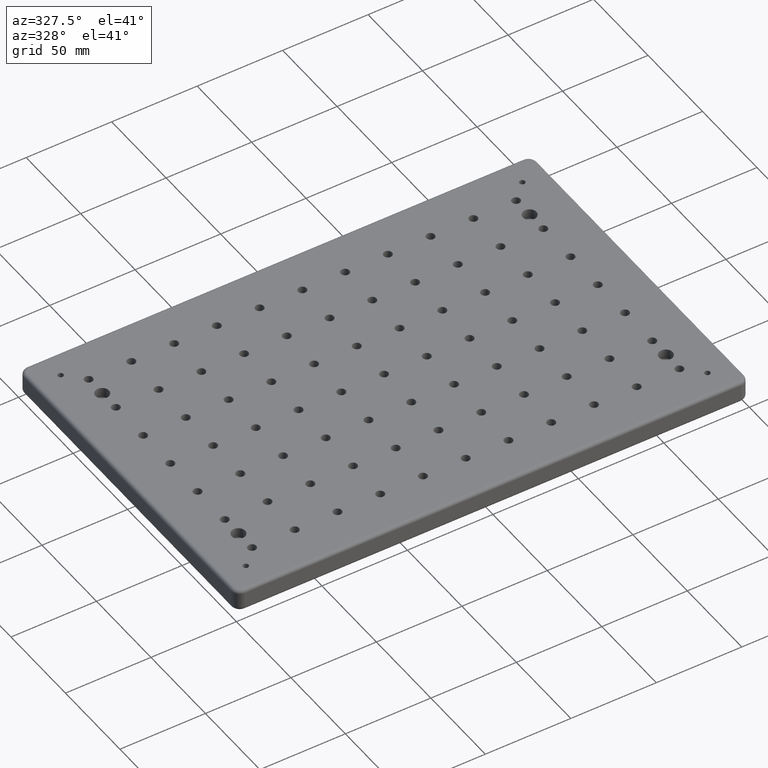
[diagram: clean part render]
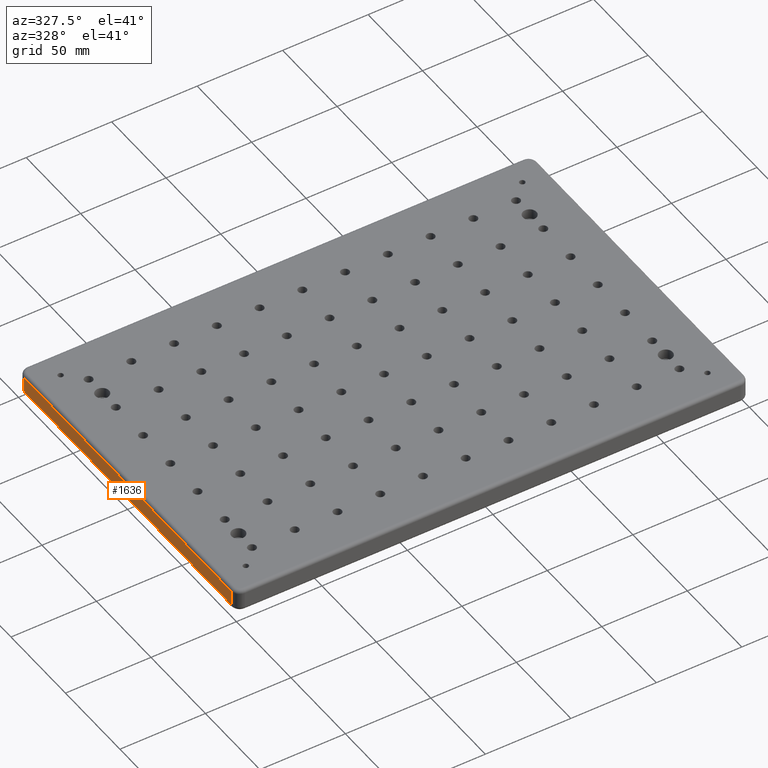
[diagram: same view with one face highlighted and labeled with its STEP entity id]
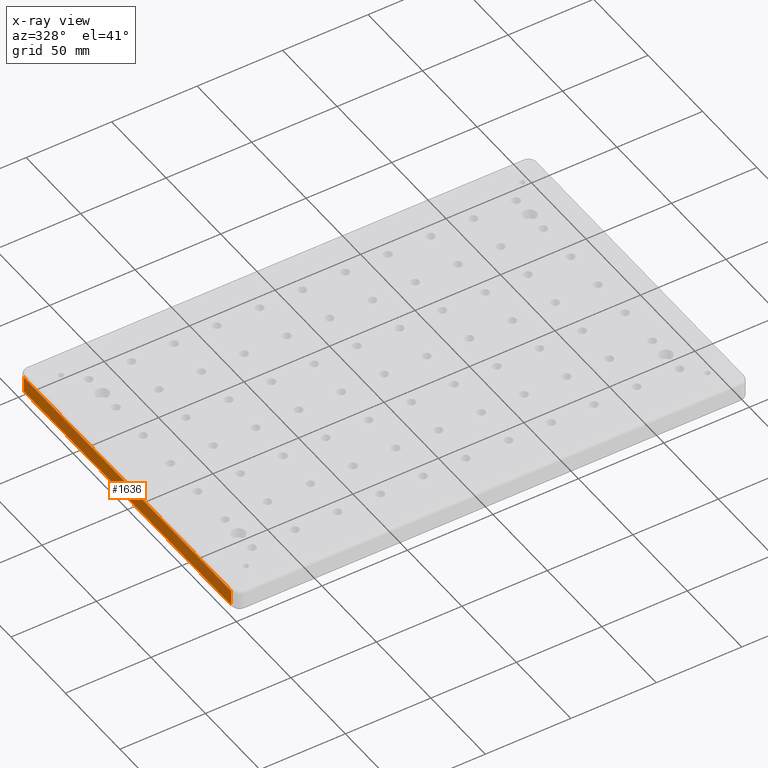
[diagram: x-ray of the same camera — body ghosted, the highlighted face saturated]
A machine part, auxiliary view. The second image highlights one B-rep face of the part: STEP entity #1636.
The next image is the same camera in x-ray: the body ghosted, the highlighted face saturated — about 0% of this face is hidden behind the body in this view.
In plain terms, the highlighted planar face has unit normal (-1, 0, 0).
Its self-contained STEP definition (entity closure, byte-faithful):
#296 = CARTESIAN_POINT ( 'NONE',  ( -149.9999999999999700, -95.00000000000011400, -2.000000000000003600 ) ) ;
#481 = DIRECTION ( 'NONE',  ( 0.0000000000000000000, 0.0000000000000000000, 1.000000000000000000 ) ) ;
#835 = VECTOR ( 'NONE', #1002, 1000.000000000000000 ) ;
#1002 = DIRECTION ( 'NONE',  ( 0.0000000000000000000, 0.0000000000000000000, 1.000000000000000000 ) ) ;
#1032 = DIRECTION ( 'NONE',  ( -0.0000000000000000000, 1.000000000000000000, -0.0000000000000000000 ) ) ;
#1215 = CARTESIAN_POINT ( 'NONE',  ( -149.9999999999999700, 95.00000000000011400, -11.00000000000000000 ) ) ;
#1457 = AXIS2_PLACEMENT_3D ( 'NONE', #1578, #5542, #5574 ) ;
#1520 = CARTESIAN_POINT ( 'NONE',  ( -149.9999999999999700, -95.00000000000011400, -13.00000000000000000 ) ) ;
#1578 = CARTESIAN_POINT ( 'NONE',  ( -149.9999999999999700, -95.00000000000011400, -13.00000000000000000 ) ) ;
#1636 = ADVANCED_FACE ( 'NONE', ( #2366 ), #6143, .T. ) ;
#1688 = ORIENTED_EDGE ( 'NONE', *, *, #3607, .F. ) ;
#2055 = CARTESIAN_POINT ( 'NONE',  ( -149.9999999999999700, -95.00000000000011400, -11.00000000000000000 ) ) ;
#2264 = VERTEX_POINT ( 'NONE', #1215 ) ;
#2366 = FACE_OUTER_BOUND ( 'NONE', #7073, .T. ) ;
#2514 = VERTEX_POINT ( 'NONE', #7199 ) ;
#2924 = LINE ( 'NONE', #6714, #5435 ) ;
#3084 = ORIENTED_EDGE ( 'NONE', *, *, #4943, .T. ) ;
#3322 = VECTOR ( 'NONE', #481, 1000.000000000000000 ) ;
#3607 = EDGE_CURVE ( 'NONE', #2264, #6367, #6453, .T. ) ;
#3667 = DIRECTION ( 'NONE',  ( 0.0000000000000000000, -1.000000000000000000, 0.0000000000000000000 ) ) ;
#3963 = LINE ( 'NONE', #2055, #4315 ) ;
#4315 = VECTOR ( 'NONE', #3667, 1000.000000000000000 ) ;
#4344 = CARTESIAN_POINT ( 'NONE',  ( -149.9999999999999700, 95.00000000000011400, -2.000000000000001800 ) ) ;
#4868 = LINE ( 'NONE', #1520, #3322 ) ;
#4943 = EDGE_CURVE ( 'NONE', #5638, #6367, #2924, .T. ) ;
#5028 = ORIENTED_EDGE ( 'NONE', *, *, #6301, .T. ) ;
#5435 = VECTOR ( 'NONE', #1032, 1000.000000000000000 ) ;
#5542 = DIRECTION ( 'NONE',  ( -1.000000000000000000, 0.0000000000000000000, 0.0000000000000000000 ) ) ;
#5574 = DIRECTION ( 'NONE',  ( 0.0000000000000000000, 0.0000000000000000000, 1.000000000000000000 ) ) ;
#5638 = VERTEX_POINT ( 'NONE', #296 ) ;
#6143 = PLANE ( 'NONE',  #1457 ) ;
#6301 = EDGE_CURVE ( 'NONE', #2264, #2514, #3963, .T. ) ;
#6367 = VERTEX_POINT ( 'NONE', #4344 ) ;
#6453 = LINE ( 'NONE', #7235, #835 ) ;
#6533 = ORIENTED_EDGE ( 'NONE', *, *, #7048, .T. ) ;
#6714 = CARTESIAN_POINT ( 'NONE',  ( -149.9999999999999700, 95.00000000000011400, -2.000000000000000000 ) ) ;
#7048 = EDGE_CURVE ( 'NONE', #2514, #5638, #4868, .T. ) ;
#7073 = EDGE_LOOP ( 'NONE', ( #1688, #5028, #6533, #3084 ) ) ;
#7199 = CARTESIAN_POINT ( 'NONE',  ( -149.9999999999999700, -95.00000000000011400, -11.00000000000000000 ) ) ;
#7235 = CARTESIAN_POINT ( 'NONE',  ( -149.9999999999999700, 95.00000000000011400, -13.00000000000000000 ) ) ;